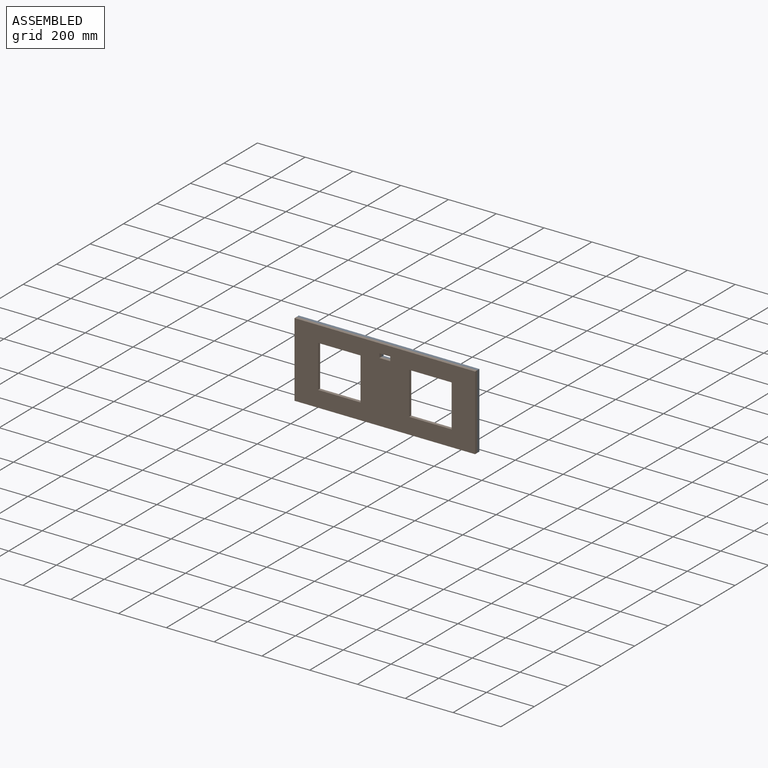
[diagram: assembled view]
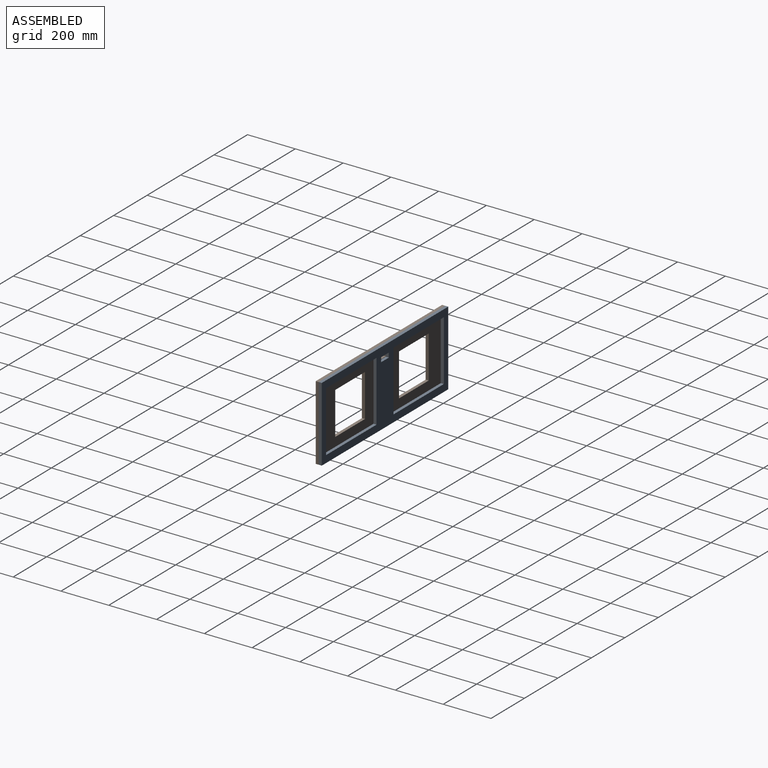
[diagram: assembled view, second angle]
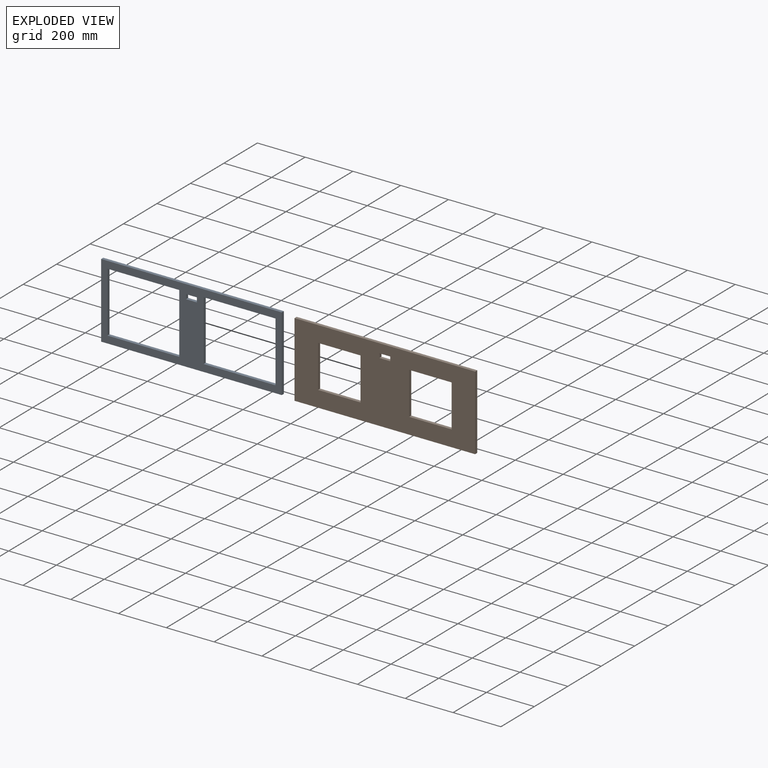
[diagram: exploded view]
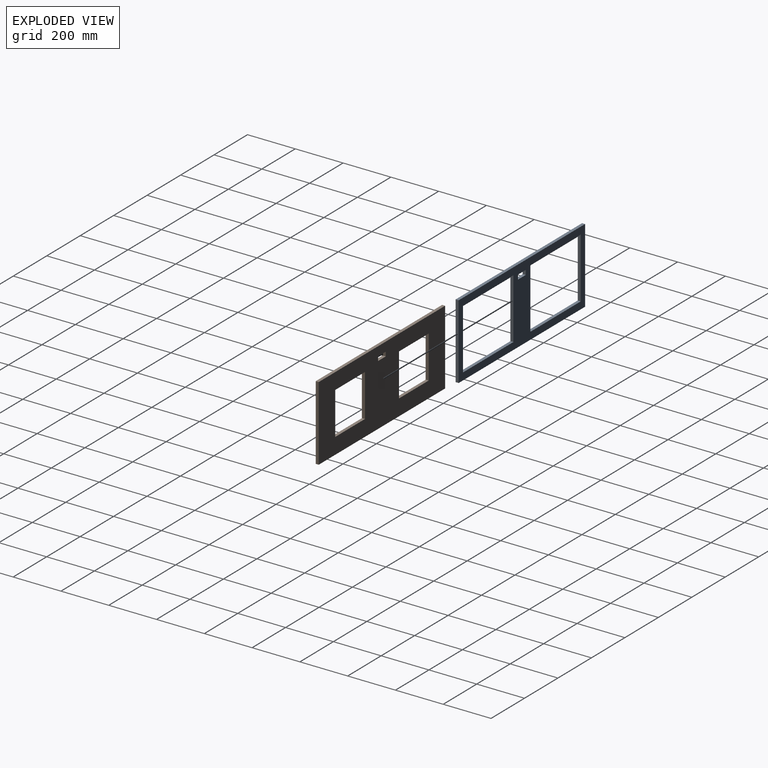
[diagram: exploded view, second angle]
ASSEMBLY  parts=2 mates=3
PART A: 18 faces, bbox 755.7x12.7x312.7 mm
  f0: plane 755.65x312.74mm, normal (0,-1,0), area 83310.7mm2, adj f2,f3,f4,f5,f6,f7,f8,f9
  f1: plane 755.65x312.74mm, normal (0,1,0), area 83310.7mm2, adj f2,f3,f4,f5,f6,f7,f8,f9
  f2: plane 312.74x12.7mm, normal (-1,0,0), area 3971.8mm2, adj f0,f1,f3,f5
  f3: plane 755.65x12.7mm, normal (0,0,-1), area 9596.8mm2, adj f0,f1,f2,f4
  f4: plane 312.74x12.7mm, normal (1,0,0), area 3971.8mm2, adj f0,f1,f3,f5
  f5: plane 755.65x12.7mm, normal (0,0,1), area 9596.8mm2, adj f0,f1,f2,f4
  f6: plane 300.99x12.7mm, normal (0,0,-1), area 3822.6mm2, adj f0,f1,f7,f9
  f7: plane 252.73x12.7mm, normal (1,0,0), area 3209.7mm2, adj f0,f1,f6,f8
  f8: plane 300.99x12.7mm, normal (0,0,1), area 3822.6mm2, adj f0,f1,f7,f9
  f9: plane 252.73x12.7mm, normal (-1,0,0), area 3209.7mm2, adj f0,f1,f6,f8
  f10: plane 300.99x12.7mm, normal (0,0,-1), area 3822.6mm2, adj f0,f1,f11,f13
  f11: plane 252.73x12.7mm, normal (1,0,0), area 3209.7mm2, adj f0,f1,f10,f12
  f12: plane 300.99x12.7mm, normal (0,0,1), area 3822.6mm2, adj f0,f1,f11,f13
  f13: plane 252.73x12.7mm, normal (-1,0,0), area 3209.7mm2, adj f0,f1,f10,f12
  f14: plane 45.72x12.7mm, normal (0,0,-1), area 580.6mm2, adj f0,f1,f15,f17
  f15: plane 19.05x12.7mm, normal (1,0,0), area 241.9mm2, adj f0,f1,f14,f16
  f16: plane 45.72x12.7mm, normal (0,0,1), area 580.6mm2, adj f0,f1,f15,f17
  f17: plane 19.05x12.7mm, normal (-1,0,0), area 241.9mm2, adj f0,f1,f14,f16
PART B: 18 faces, bbox 755.7x12.7x312.7 mm
  f0: plane 755.65x312.74mm, normal (0,-1,0), area 172281.5mm2, adj f2,f3,f4,f5,f6,f7,f8,f9
  f1: plane 755.65x312.74mm, normal (0,1,0), area 172281.5mm2, adj f2,f3,f4,f5,f6,f7,f8,f9
  f2: plane 312.74x12.7mm, normal (-1,0,0), area 3971.8mm2, adj f0,f1,f3,f5
  f3: plane 755.65x12.7mm, normal (0,0,-1), area 9596.8mm2, adj f0,f1,f2,f4
  f4: plane 312.74x12.7mm, normal (1,0,0), area 3971.8mm2, adj f0,f1,f3,f5
  f5: plane 755.65x12.7mm, normal (0,0,1), area 9596.8mm2, adj f0,f1,f2,f4
  f6: plane 177.8x12.7mm, normal (0,0,-1), area 2258.1mm2, adj f0,f1,f7,f9
  f7: plane 177.8x12.7mm, normal (1,0,0), area 2258.1mm2, adj f0,f1,f6,f8
  f8: plane 177.8x12.7mm, normal (0,0,1), area 2258.1mm2, adj f0,f1,f7,f9
  f9: plane 177.8x12.7mm, normal (-1,0,0), area 2258.1mm2, adj f0,f1,f6,f8
  f10: plane 177.8x12.7mm, normal (0,0,-1), area 2258.1mm2, adj f0,f1,f11,f13
  f11: plane 177.8x12.7mm, normal (1,0,0), area 2258.1mm2, adj f0,f1,f10,f12
  f12: plane 177.8x12.7mm, normal (0,0,1), area 2258.1mm2, adj f0,f1,f11,f13
  f13: plane 177.8x12.7mm, normal (-1,0,0), area 2258.1mm2, adj f0,f1,f10,f12
  f14: plane 45.72x12.7mm, normal (0,0,-1), area 580.6mm2, adj f0,f1,f15,f17
  f15: plane 17.78x12.7mm, normal (1,0,0), area 225.8mm2, adj f0,f1,f14,f16
  f16: plane 45.72x12.7mm, normal (0,0,1), area 580.6mm2, adj f0,f1,f15,f17
  f17: plane 17.78x12.7mm, normal (-1,0,0), area 225.8mm2, adj f0,f1,f14,f16
PLACE A t=(-102.96,-36.15,107.34)mm
PLACE B t=(-102.96,-48.85,107.34)mm
MATE planar B.f4 <-> A.f4  axis (1,0,0) through (274.86,-55.2,107.34)mm
MATE planar B.f5 <-> A.f5  axis (0,0,1) through (-102.96,-55.2,263.71)mm
MATE planar A.f0 <-> B.f1  axis (0,-1,0) through (-102.96,-48.85,106.2)mm
